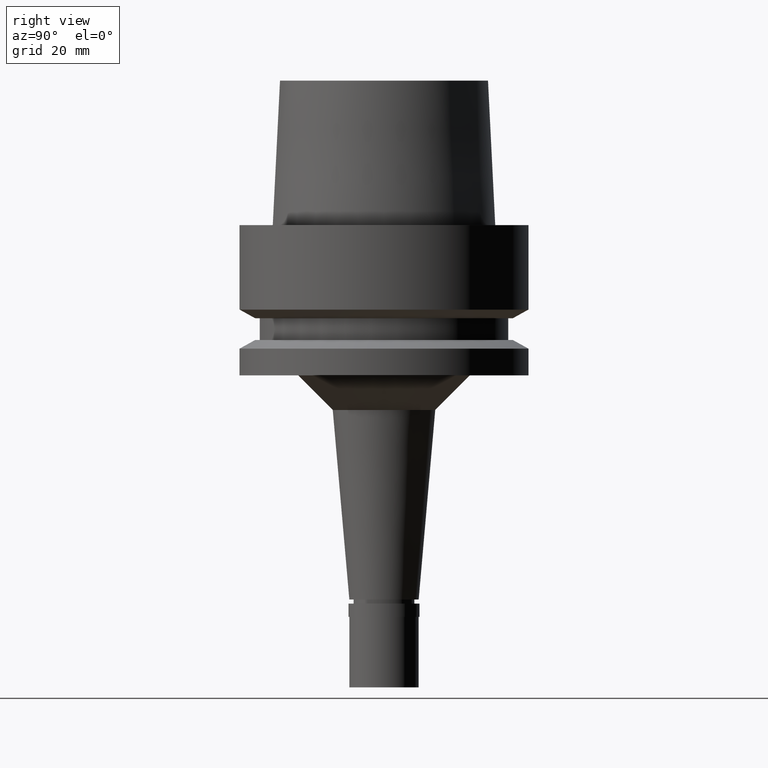
[diagram: clean part render]
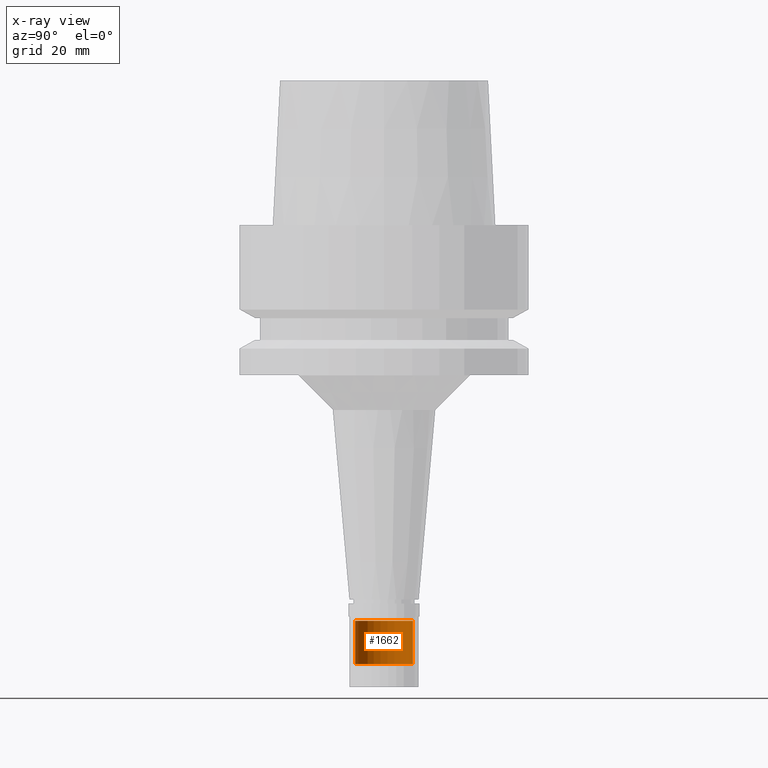
[diagram: x-ray — body ghosted, one internal face saturated and labeled with its STEP entity id]
A machine part, right view, then the same camera in x-ray: the body is ghosted and one INTERNAL B-rep face — a face not visible from any outside direction — is saturated and labeled: STEP entity #1662.
In plain terms, the highlighted cylindrical surface (edge-blend (fillet) strip) has radius 5 mm, axis along (0, 0, -1).
Its self-contained STEP definition (entity closure, byte-faithful):
#15 = FACE_OUTER_BOUND ( 'NONE', #1935, .T. ) ;
#19 = CARTESIAN_POINT ( 'NONE',  ( 0.0000000000000000000, -5.000000000000000000, -68.50000000000000000 ) ) ;
#44 = AXIS2_PLACEMENT_3D ( 'NONE', #1405, #1992, #2432 ) ;
#53 = VECTOR ( 'NONE', #557, 1000.000000000000000 ) ;
#110 = ORIENTED_EDGE ( 'NONE', *, *, #432, .F. ) ;
#121 = VERTEX_POINT ( 'NONE', #873 ) ;
#149 = VERTEX_POINT ( 'NONE', #1389 ) ;
#153 = VECTOR ( 'NONE', #2047, 1000.000000000000000 ) ;
#238 = DIRECTION ( 'NONE',  ( 0.0000000000000000000, 1.000000000000000000, 0.0000000000000000000 ) ) ;
#432 = EDGE_CURVE ( 'NONE', #1937, #1879, #1407, .T. ) ;
#557 = DIRECTION ( 'NONE',  ( 0.0000000000000000000, 0.0000000000000000000, -1.000000000000000000 ) ) ;
#707 = AXIS2_PLACEMENT_3D ( 'NONE', #2056, #1859, #1667 ) ;
#873 = CARTESIAN_POINT ( 'NONE',  ( 0.0000000000000000000, 5.000000000000000000, -68.50000000000000000 ) ) ;
#952 = ORIENTED_EDGE ( 'NONE', *, *, #1097, .T. ) ;
#1031 = AXIS2_PLACEMENT_3D ( 'NONE', #2515, #2307, #238 ) ;
#1097 = EDGE_CURVE ( 'NONE', #121, #149, #2648, .T. ) ;
#1181 = CYLINDRICAL_SURFACE ( 'NONE', #707, 5.000000000000000000 ) ;
#1290 = EDGE_CURVE ( 'NONE', #149, #1879, #1771, .T. ) ;
#1389 = CARTESIAN_POINT ( 'NONE',  ( 0.0000000000000000000, 5.000000000000000000, -76.00000000000000000 ) ) ;
#1405 = CARTESIAN_POINT ( 'NONE',  ( 0.0000000000000000000, 0.0000000000000000000, -68.50000000000000000 ) ) ;
#1407 = LINE ( 'NONE', #2434, #153 ) ;
#1409 = CARTESIAN_POINT ( 'NONE',  ( 0.0000000000000000000, 5.000000000000000000, -68.50000000000000000 ) ) ;
#1658 = ORIENTED_EDGE ( 'NONE', *, *, #1290, .T. ) ;
#1662 = ADVANCED_FACE ( 'NONE', ( #15 ), #1181, .T. ) ;
#1667 = DIRECTION ( 'NONE',  ( 0.0000000000000000000, -1.000000000000000000, 0.0000000000000000000 ) ) ;
#1771 = CIRCLE ( 'NONE', #1031, 5.000000000000000000 ) ;
#1793 = CARTESIAN_POINT ( 'NONE',  ( 0.0000000000000000000, -5.000000000000000000, -76.00000000000000000 ) ) ;
#1859 = DIRECTION ( 'NONE',  ( 0.0000000000000000000, 0.0000000000000000000, -1.000000000000000000 ) ) ;
#1879 = VERTEX_POINT ( 'NONE', #1793 ) ;
#1886 = ORIENTED_EDGE ( 'NONE', *, *, #2461, .T. ) ;
#1920 = CIRCLE ( 'NONE', #44, 5.000000000000000000 ) ;
#1935 = EDGE_LOOP ( 'NONE', ( #1658, #110, #1886, #952 ) ) ;
#1937 = VERTEX_POINT ( 'NONE', #19 ) ;
#1992 = DIRECTION ( 'NONE',  ( 0.0000000000000000000, 0.0000000000000000000, -1.000000000000000000 ) ) ;
#2047 = DIRECTION ( 'NONE',  ( 0.0000000000000000000, 0.0000000000000000000, -1.000000000000000000 ) ) ;
#2056 = CARTESIAN_POINT ( 'NONE',  ( 0.0000000000000000000, 0.0000000000000000000, 30.05000000000000071 ) ) ;
#2307 = DIRECTION ( 'NONE',  ( 0.0000000000000000000, 0.0000000000000000000, 1.000000000000000000 ) ) ;
#2432 = DIRECTION ( 'NONE',  ( 0.0000000000000000000, -1.000000000000000000, 0.0000000000000000000 ) ) ;
#2434 = CARTESIAN_POINT ( 'NONE',  ( 0.0000000000000000000, -5.000000000000000000, -68.50000000000000000 ) ) ;
#2461 = EDGE_CURVE ( 'NONE', #1937, #121, #1920, .T. ) ;
#2515 = CARTESIAN_POINT ( 'NONE',  ( 0.0000000000000000000, 0.0000000000000000000, -76.00000000000000000 ) ) ;
#2648 = LINE ( 'NONE', #1409, #53 ) ;